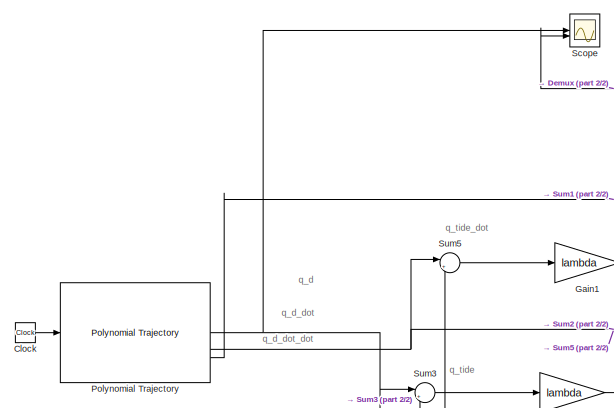
[diagram: root canvas - part 1/2, left side, full height]
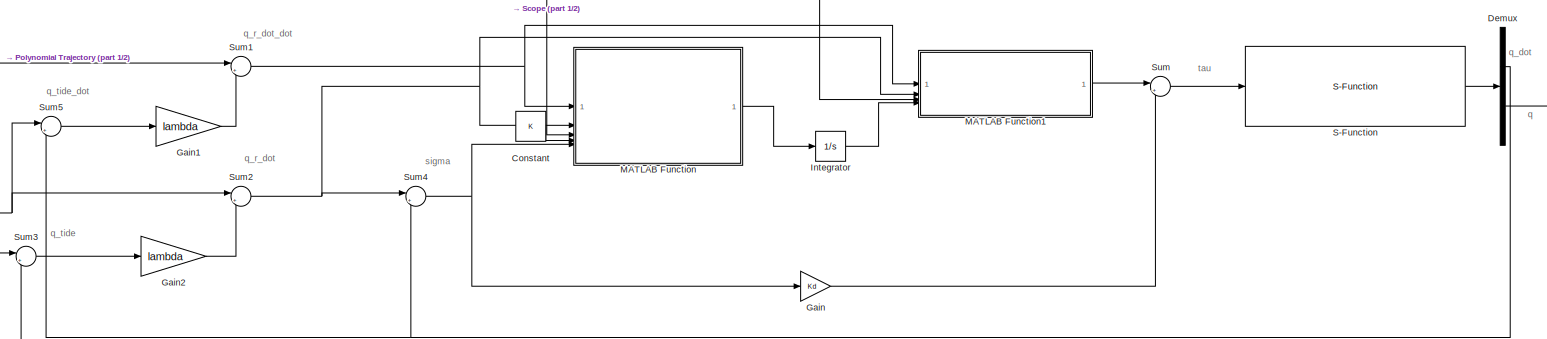
[diagram: root canvas - part 2/2, full width, middle band]
MODEL slx_9f855be7d25d
KIND model
CONFIG AbsTol = auto
CONFIG EnableMultiTasking = off
CONFIG FixedStep = auto
CONFIG MaxStep = auto
CONFIG MinStep = auto
CONFIG RelTol = 1e-3
CONFIG SampleTimeConstraint = Unconstrained
CONFIG SolverName = VariableStepAuto
CONFIG StartTime = 0.0
CONFIG StopTime = 10.0
BLOCK [Clock] Clock
BLOCK [Constant] Constant
  Value = K
BLOCK [Demux] Demux
  Outputs = 2
BLOCK [Gain] Gain
  Gain = Kd
BLOCK [Gain] Gain1
  Gain = lambda
BLOCK [Gain] Gain2
  Gain = lambda
BLOCK [Integrator] Integrator
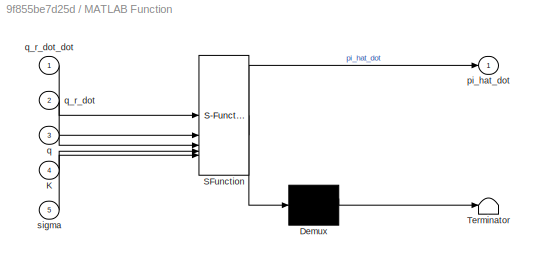
BLOCK [SubSystem] MATLAB Function
  ErrorFcn = Stateflow.Translate.translate
  LibrarySourceBlock = simulink/User-Defined\nFunctions/MATLAB Function
  PermitHierarchicalResolution = ExplicitOnly
  SFBlockType = MATLAB Function
  TreatAsAtomicUnit = on
BLOCK [Demux] MATLAB Function/ Demux 
  Outputs = 1
BLOCK [S-Function] MATLAB Function/ SFunction 
  EnableBusSupport = on
  FunctionName = sf_sfun
  PortCounts = [5 2]
  SFcnIsStateOwnerBlock = off
  SFunctionDeploymentMode = off
  Tag = Stateflow S-Function 2
BLOCK [Terminator] MATLAB Function/ Terminator 
BLOCK [Inport] MATLAB Function/K
  Port = 4
BLOCK [Outport] MATLAB Function/pi_hat_dot
BLOCK [Inport] MATLAB Function/q
  Port = 3
BLOCK [Inport] MATLAB Function/q_r_dot
  Port = 2
BLOCK [Inport] MATLAB Function/q_r_dot_dot
BLOCK [Inport] MATLAB Function/sigma
  Port = 5
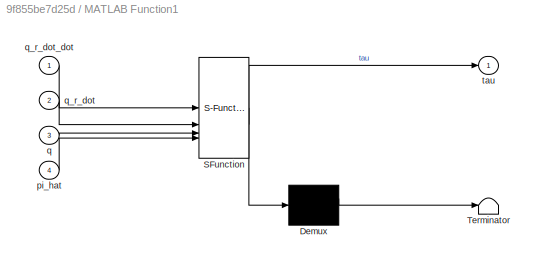
BLOCK [SubSystem] MATLAB Function1
  ErrorFcn = Stateflow.Translate.translate
  LibrarySourceBlock = simulink/User-Defined\nFunctions/MATLAB Function
  PermitHierarchicalResolution = ExplicitOnly
  SFBlockType = MATLAB Function
  TreatAsAtomicUnit = on
BLOCK [Demux] MATLAB Function1/ Demux 
  Outputs = 1
BLOCK [S-Function] MATLAB Function1/ SFunction 
  EnableBusSupport = on
  FunctionName = sf_sfun
  PortCounts = [4 2]
  SFcnIsStateOwnerBlock = off
  SFunctionDeploymentMode = off
  Tag = Stateflow S-Function 1
BLOCK [Terminator] MATLAB Function1/ Terminator 
BLOCK [Inport] MATLAB Function1/pi_hat
  Port = 4
BLOCK [Inport] MATLAB Function1/q
  Port = 3
BLOCK [Inport] MATLAB Function1/q_r_dot
  Port = 2
BLOCK [Inport] MATLAB Function1/q_r_dot_dot
BLOCK [Outport] MATLAB Function1/tau
BLOCK [Reference] Polynomial Trajectory  REF=robotcorelib/Polynomial Trajectory
  LibrarySourceBlock = robotutilslib/Polynomial Trajectory
  SourceBlock = robotcorelib/Polynomial Trajectory
  SourceType = robotics.slcore.internal.block.PolyTrajSys
BLOCK [S-Function] S-Function
  EnableBusSupport = off
  FunctionName = ManipulatorAdaptiveControl
  Parameters = params
  SFcnIsStateOwnerBlock = off
  SFunctionDeploymentMode = off
BLOCK [Scope] Scope
  Floating = off
  NumInputPorts = 2
  ScopeSpecificationString = Simulink.scopes.TimeScopeBlockCfg('CurrentConfiguration', extmgr.ConfigurationSet(extmgr.Configuration('Core','General UI',true),extmgr.Configuration('Core','Source UI',true),extmgr.Configuration('Sources','WiredSimulink',true),extmgr.Configuration('Visuals','Time Domain',true,'SerializedDisplays',{struct('MinYLimReal','-2.5','MaxYLimReal','2.5','YLabelReal','','MinYLimMag','0.00000','MaxYLimMag',...<+1481ch>
BLOCK [Sum] Sum
  Inputs = |++
BLOCK [Sum] Sum1
  Inputs = |++
BLOCK [Sum] Sum2
  Inputs = |++
BLOCK [Sum] Sum3
  Inputs = |+-
BLOCK [Sum] Sum4
  Inputs = |+-
BLOCK [Sum] Sum5
  Inputs = |+-
ANNOTATION (root): q
ANNOTATION (root): q_d
ANNOTATION (root): q_d_dot
ANNOTATION (root): q_d_dot_dot
ANNOTATION (root): q_dot
ANNOTATION (root): q_r_dot
ANNOTATION (root): q_r_dot_dot
ANNOTATION (root): q_tide
ANNOTATION (root): q_tide_dot
ANNOTATION (root): sigma
ANNOTATION (root): tau
LINE Clock:1 -> Polynomial Trajectory:1
LINE Constant:1 -> MATLAB Function:4
NET Demux:1 -> Sum4:2, Sum5:2
NET Demux:2 -> MATLAB Function1:3, MATLAB Function:3, Scope:2, Sum3:2
LINE Gain1:1 -> Sum1:2
LINE Gain2:1 -> Sum2:2
LINE Gain:1 -> Sum:2
LINE Integrator:1 -> MATLAB Function1:4
LINE MATLAB Function1:1 -> Sum:1
LINE MATLAB Function:1 -> Integrator:1
NET Polynomial Trajectory:1 -> Scope:1, Sum3:1
NET Polynomial Trajectory:2 -> Sum2:1, Sum5:1
LINE Polynomial Trajectory:3 -> Sum1:1
LINE S-Function:1 -> Demux:1
NET Sum1:1 -> MATLAB Function1:1, MATLAB Function:1
NET Sum2:1 -> MATLAB Function1:2, MATLAB Function:2, Sum4:1
LINE Sum3:1 -> Gain2:1
NET Sum4:1 -> Gain:1, MATLAB Function:5
LINE Sum5:1 -> Gain1:1
LINE Sum:1 -> S-Function:1
note: NET lines group one-source signal fan-out (src -> all destinations, sorted); 1:1 wires keep LINE
CHART MATLAB Function1 states=1 transitions=1
  STATE_LABEL 'eML_blk_kernel()'
  STATE_LABEL 'SCRIPT:\nfunction tau = Y(q_r_dot_dot, q_r_dot, q, pi_hat)\n    tau = [q_r_dot_dot, q_r_dot, q] * pi_hat;\nend'
CHART MATLAB Function states=1 transitions=1
  STATE_LABEL 'eML_blk_kernel()'
  STATE_LABEL "SCRIPT:\nfunction pi_hat_dot = k_inv_y_t(q_r_dot_dot, q_r_dot, q, K, sigma)\n    pi_hat_dot = inv(K)*[q_r_dot_dot, q_r_dot, sin(q)]'*sigma;\nend\n"
CHART  states=0 transitions=0
CHART  states=0 transitions=0
